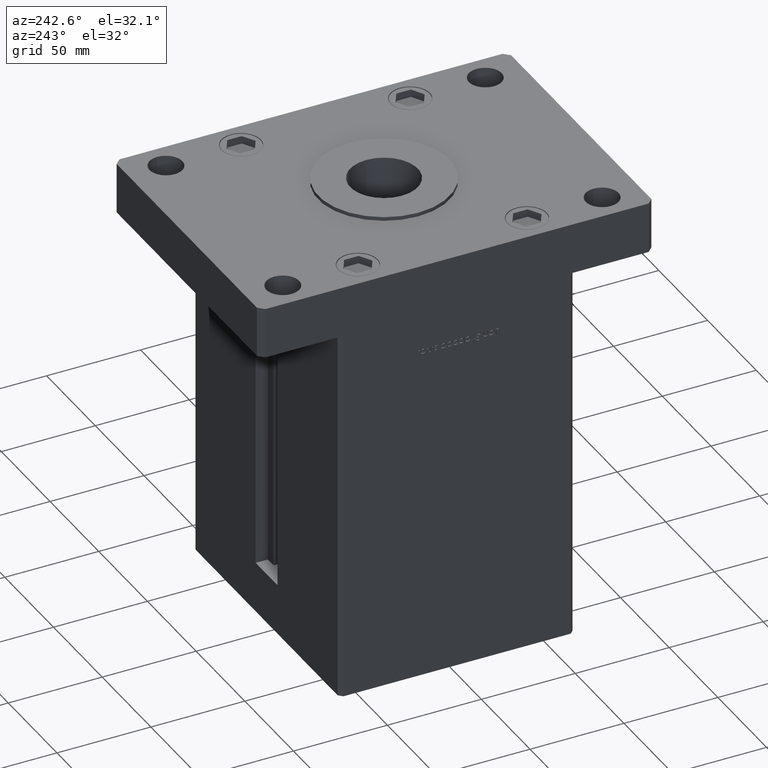
[diagram: clean part render]
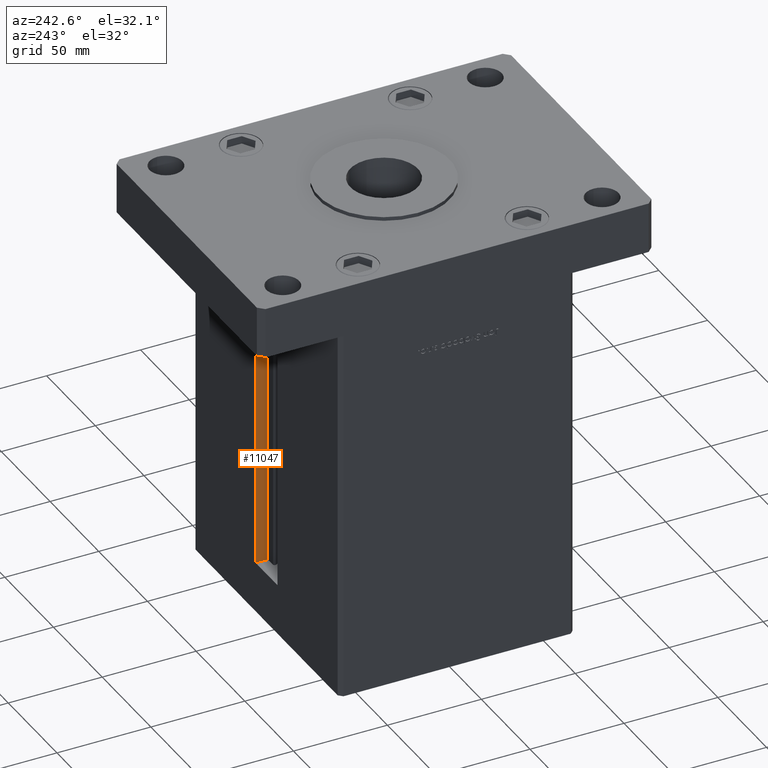
[diagram: same view with one face highlighted and labeled with its STEP entity id]
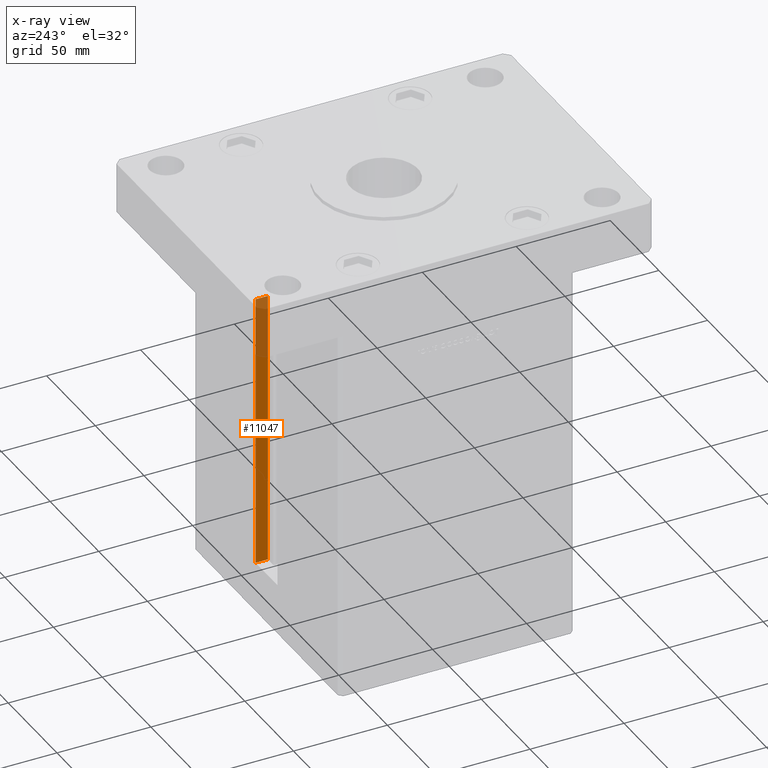
[diagram: x-ray of the same camera — body ghosted, the highlighted face saturated]
A machine part, auxiliary view. The second image highlights one B-rep face of the part: STEP entity #11047.
The next image is the same camera in x-ray: the body ghosted, the highlighted face saturated — about 22% of this face is hidden behind the body in this view.
In plain terms, the highlighted planar face has unit normal (1, 0, 0).
Its self-contained STEP definition (entity closure, byte-faithful):
#1061 = VECTOR ( 'NONE', #33562, 1000.000000000000000 ) ;
#2301 = VERTEX_POINT ( 'NONE', #38159 ) ;
#3800 = DIRECTION ( 'NONE',  ( -0.000000000000000000, -0.000000000000000000, 1.000000000000000000 ) ) ;
#4773 = ORIENTED_EDGE ( 'NONE', *, *, #39644, .F. ) ;
#5237 = EDGE_CURVE ( 'NONE', #47835, #2301, #46815, .T. ) ;
#6116 = CARTESIAN_POINT ( 'NONE',  ( 11.25000000000000178, 0.000000000000000000, 147.0000000000000000 ) ) ;
#8951 = EDGE_CURVE ( 'NONE', #34528, #2301, #14242, .T. ) ;
#9807 = VECTOR ( 'NONE', #22657, 1000.000000000000000 ) ;
#11047 = ADVANCED_FACE ( 'NONE', ( #22181 ), #31110, .F. ) ;
#11486 = ORIENTED_EDGE ( 'NONE', *, *, #8951, .F. ) ;
#14045 = EDGE_LOOP ( 'NONE', ( #4773, #44266, #16869, #11486 ) ) ;
#14242 = LINE ( 'NONE', #6116, #9807 ) ;
#14842 = CARTESIAN_POINT ( 'NONE',  ( 11.25000000000000178, 55.99999999999999289, 0.000000000000000000 ) ) ;
#16273 = VECTOR ( 'NONE', #3800, 1000.000000000000000 ) ;
#16869 = ORIENTED_EDGE ( 'NONE', *, *, #5237, .T. ) ;
#17290 = CARTESIAN_POINT ( 'NONE',  ( 11.25000000000000178, 55.99999999999999289, 0.000000000000000000 ) ) ;
#19931 = CARTESIAN_POINT ( 'NONE',  ( 11.25000000000000178, 62.49999999999999289, 0.000000000000000000 ) ) ;
#21197 = VECTOR ( 'NONE', #26531, 1000.000000000000000 ) ;
#22181 = FACE_OUTER_BOUND ( 'NONE', #14045, .T. ) ;
#22657 = DIRECTION ( 'NONE',  ( -0.000000000000000000, -1.000000000000000000, 0.000000000000000000 ) ) ;
#25732 = EDGE_CURVE ( 'NONE', #47835, #52946, #51720, .T. ) ;
#25980 = DIRECTION ( 'NONE',  ( 1.000000000000000000, -0.000000000000000000, 0.000000000000000000 ) ) ;
#26531 = DIRECTION ( 'NONE',  ( 0.000000000000000000, 1.000000000000000000, 0.000000000000000000 ) ) ;
#28464 = CARTESIAN_POINT ( 'NONE',  ( 11.25000000000000178, 62.49999999999999289, 0.000000000000000000 ) ) ;
#30704 = CARTESIAN_POINT ( 'NONE',  ( 11.24999999999999467, 62.49999999999999289, 147.0000000000000000 ) ) ;
#31110 = PLANE ( 'NONE',  #47096 ) ;
#33562 = DIRECTION ( 'NONE',  ( -0.000000000000000000, -0.000000000000000000, 1.000000000000000000 ) ) ;
#34528 = VERTEX_POINT ( 'NONE', #30704 ) ;
#34643 = CARTESIAN_POINT ( 'NONE',  ( 11.25000000000000178, 55.99999999999999289, 0.000000000000000000 ) ) ;
#38159 = CARTESIAN_POINT ( 'NONE',  ( 11.25000000000000178, 55.99999999999999289, 147.0000000000000000 ) ) ;
#39644 = EDGE_CURVE ( 'NONE', #52946, #34528, #53388, .T. ) ;
#42496 = DIRECTION ( 'NONE',  ( 0.000000000000000000, 0.000000000000000000, -1.000000000000000000 ) ) ;
#44266 = ORIENTED_EDGE ( 'NONE', *, *, #25732, .F. ) ;
#46815 = LINE ( 'NONE', #17290, #1061 ) ;
#47096 = AXIS2_PLACEMENT_3D ( 'NONE', #34643, #25980, #42496 ) ;
#47835 = VERTEX_POINT ( 'NONE', #49793 ) ;
#49793 = CARTESIAN_POINT ( 'NONE',  ( 11.25000000000000178, 55.99999999999999289, 0.000000000000000000 ) ) ;
#51720 = LINE ( 'NONE', #14842, #21197 ) ;
#52946 = VERTEX_POINT ( 'NONE', #19931 ) ;
#53388 = LINE ( 'NONE', #28464, #16273 ) ;